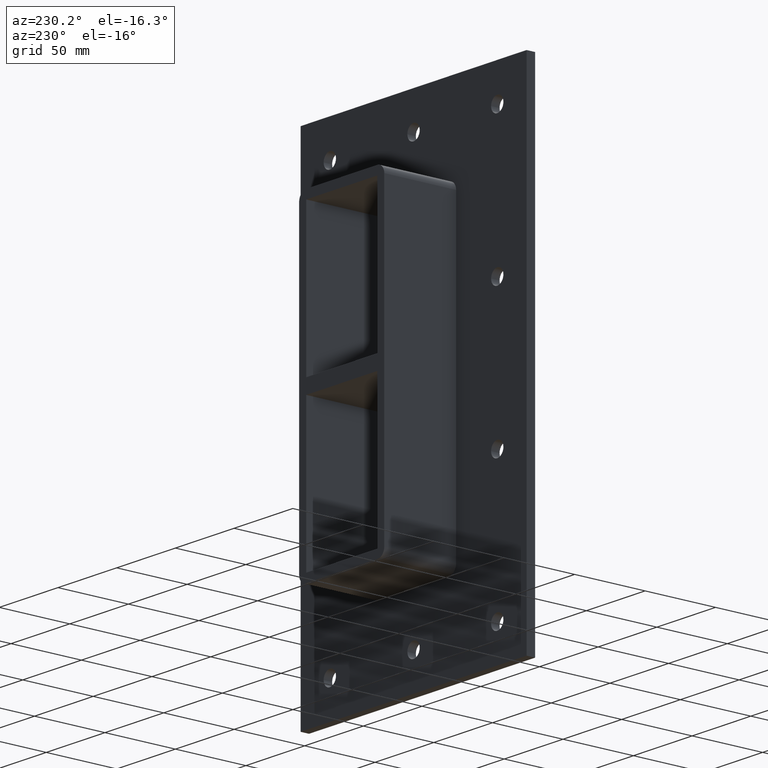
[diagram: clean part render]
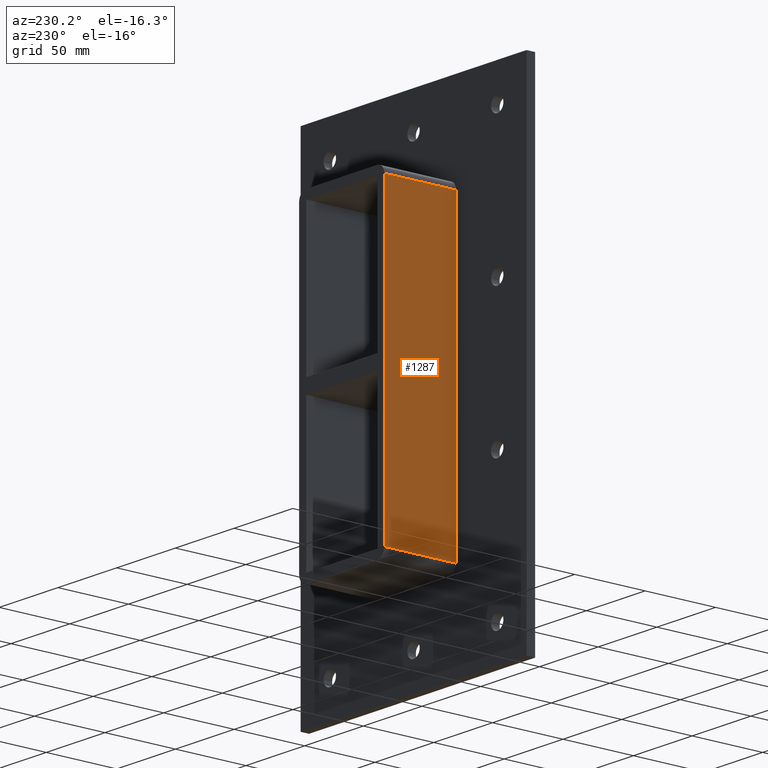
[diagram: same view with one face highlighted and labeled with its STEP entity id]
A machine part, auxiliary view. The second image highlights one B-rep face of the part: STEP entity #1287.
In plain terms, the highlighted planar face has unit normal (-1, 0, 0).
Its self-contained STEP definition (entity closure, byte-faithful):
#592=CARTESIAN_POINT('',(-36.25,6.000000000000001,-106.00000000000001));
#593=VERTEX_POINT('',#592);
#643=CARTESIAN_POINT('',(-36.25,6.000000000000001,106.00000000000001));
#644=VERTEX_POINT('',#643);
#652=CARTESIAN_POINT('',(-36.25,6.000000000000001,-106.00000000000001));
#653=DIRECTION('',(0.0,0.0,1.0));
#654=VECTOR('',#653,212.00000000000006);
#655=LINE('',#652,#654);
#656=EDGE_CURVE('',#593,#644,#655,.T.);
#1245=CARTESIAN_POINT('',(-36.25,57.0,-106.00000000000001));
#1246=VERTEX_POINT('',#1245);
#1247=CARTESIAN_POINT('',(-36.25,6.000000000000001,-106.00000000000001));
#1248=DIRECTION('',(0.0,1.0,0.0));
#1249=VECTOR('',#1248,51.0);
#1250=LINE('',#1247,#1249);
#1251=EDGE_CURVE('',#593,#1246,#1250,.T.);
#1264=CARTESIAN_POINT('',(-36.25,0.0,-112.00000000000003));
#1265=DIRECTION('',(-1.0,0.0,0.0));
#1266=DIRECTION('',(0.0,0.0,1.0));
#1267=AXIS2_PLACEMENT_3D('',#1264,#1265,#1266);
#1268=PLANE('',#1267);
#1269=ORIENTED_EDGE('',*,*,#656,.T.);
#1270=CARTESIAN_POINT('',(-36.25,57.0,106.00000000000001));
#1271=VERTEX_POINT('',#1270);
#1272=CARTESIAN_POINT('',(-36.25,57.0,106.00000000000001));
#1273=DIRECTION('',(0.0,-1.0,0.0));
#1274=VECTOR('',#1273,51.0);
#1275=LINE('',#1272,#1274);
#1276=EDGE_CURVE('',#1271,#644,#1275,.T.);
#1277=ORIENTED_EDGE('',*,*,#1276,.F.);
#1278=CARTESIAN_POINT('',(-36.25,57.0,-106.00000000000001));
#1279=DIRECTION('',(0.0,0.0,1.0));
#1280=VECTOR('',#1279,212.00000000000006);
#1281=LINE('',#1278,#1280);
#1282=EDGE_CURVE('',#1246,#1271,#1281,.T.);
#1283=ORIENTED_EDGE('',*,*,#1282,.F.);
#1284=ORIENTED_EDGE('',*,*,#1251,.F.);
#1285=EDGE_LOOP('',(#1269,#1277,#1283,#1284));
#1286=FACE_OUTER_BOUND('',#1285,.T.);
#1287=ADVANCED_FACE('',(#1286),#1268,.T.);